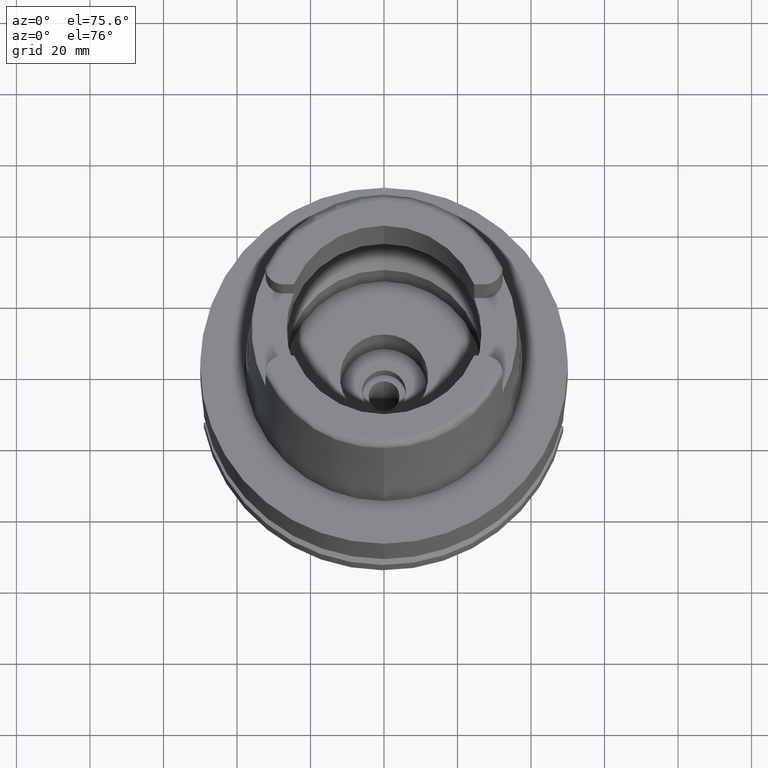
[diagram: clean part render]
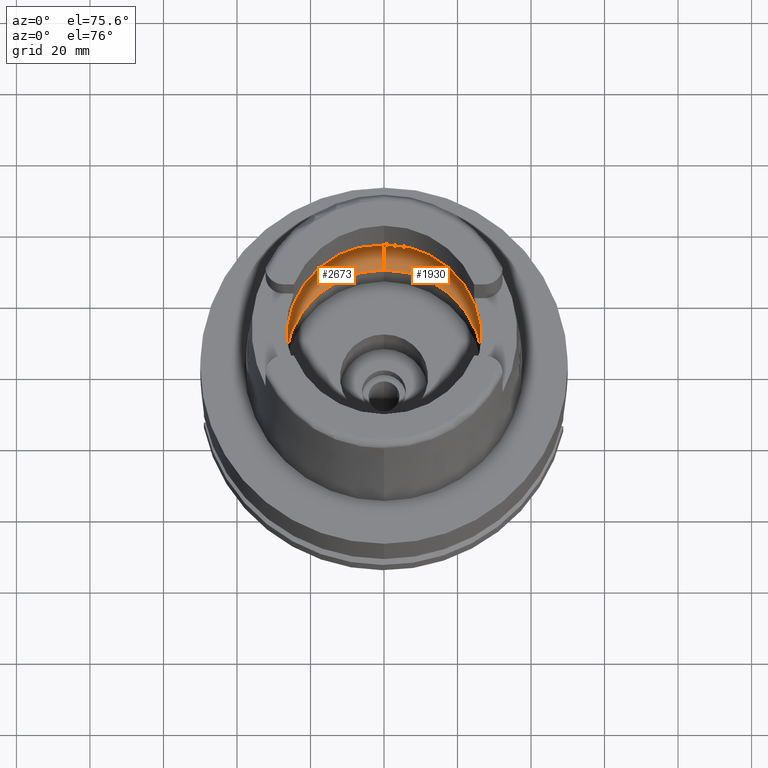
[diagram: same view with one multi-face feature highlighted, each face labeled with its STEP entity id]
A machine part, auxiliary view. The highlighted faces form ONE feature: a constant-radius fillet chain: 2 tangent blend faces with common blend radius 12 mm. The faces share edges in the B-rep.
Their STEP definitions:
[1] entity #1930 (Torus):
#66 = CARTESIAN_POINT ( 'NONE',  ( 0.0000000000000000000, 19.50000000000000000, 9.496624327025999790 ) ) ;
#132 = EDGE_CURVE ( 'NONE', #1932, #5597, #5713, .T. ) ;
#158 = AXIS2_PLACEMENT_3D ( 'NONE', #592, #5718, #1462 ) ;
#164 = EDGE_LOOP ( 'NONE', ( #3228, #3284, #5987, #2266, #5614, #1115, #2477 ) ) ;
#166 = EDGE_CURVE ( 'NONE', #5025, #2175, #3017, .T. ) ;
#282 = VERTEX_POINT ( 'NONE', #3623 ) ;
#429 = CARTESIAN_POINT ( 'NONE',  ( 31.48971910753999026, 0.8697454017787721314, 9.000000000000001776 ) ) ;
#506 = FACE_OUTER_BOUND ( 'NONE', #164, .T. ) ;
#592 = CARTESIAN_POINT ( 'NONE',  ( 0.0000000000000000000, 0.0000000000000000000, 9.496624327025999790 ) ) ;
#898 = DIRECTION ( 'NONE',  ( 0.0000000000000000000, 0.6166666666667049990, -0.7872243785746061429 ) ) ;
#904 = EDGE_CURVE ( 'NONE', #2175, #282, #3303, .T. ) ;
#905 = VERTEX_POINT ( 'NONE', #6078 ) ;
#1115 = ORIENTED_EDGE ( 'NONE', *, *, #132, .F. ) ;
#1253 = DIRECTION ( 'NONE',  ( 0.0000000000000000000, -1.000000000000000000, 0.0000000000000000000 ) ) ;
#1460 = DIRECTION ( 'NONE',  ( 1.000000000000000000, 0.0000000000000000000, 0.0000000000000000000 ) ) ;
#1462 = DIRECTION ( 'NONE',  ( 0.0000000000000000000, 1.000000000000000000, 0.0000000000000000000 ) ) ;
#1484 = CARTESIAN_POINT ( 'NONE',  ( 31.40918884336000616, 2.390158196043999705, 9.496624327025999790 ) ) ;
#1524 = CARTESIAN_POINT ( 'NONE',  ( 0.0000000000000000000, 0.0000000000000000000, 9.496624327025999790 ) ) ;
#1925 = AXIS2_PLACEMENT_3D ( 'NONE', #5249, #2454, #4349 ) ;
#1927 = CARTESIAN_POINT ( 'NONE',  ( 31.40918884336000616, -2.390158196043999705, 9.496624327025999790 ) ) ;
#1930 = ADVANCED_FACE ( 'NONE', ( #506 ), #5101, .F. ) ;
#1932 = VERTEX_POINT ( 'NONE', #1927 ) ;
#1945 = VERTEX_POINT ( 'NONE', #4440 ) ;
#2175 = VERTEX_POINT ( 'NONE', #1484 ) ;
#2266 = ORIENTED_EDGE ( 'NONE', *, *, #3839, .F. ) ;
#2269 = EDGE_CURVE ( 'NONE', #282, #1932, #5899, .T. ) ;
#2454 = DIRECTION ( 'NONE',  ( 0.0000000000000000000, 0.0000000000000000000, 1.000000000000000000 ) ) ;
#2465 = CIRCLE ( 'NONE', #5645, 11.99999999999999822 ) ;
#2477 = ORIENTED_EDGE ( 'NONE', *, *, #2269, .F. ) ;
#2768 = CARTESIAN_POINT ( 'NONE',  ( 31.46287568614665986, 1.684656700008886121, 9.190219625026216477 ) ) ;
#2992 = CARTESIAN_POINT ( 'NONE',  ( 31.48971910753999026, -0.8697454017312684638, 8.999999999999998224 ) ) ;
#3017 = CIRCLE ( 'NONE', #158, 31.50000000000000000 ) ;
#3048 = DIRECTION ( 'NONE',  ( 0.0000000000000000000, 0.0000000000000000000, 1.000000000000000000 ) ) ;
#3160 = DIRECTION ( 'NONE',  ( 0.0000000000000000000, -0.6166666666667049990, -0.7872243785746061429 ) ) ;
#3228 = ORIENTED_EDGE ( 'NONE', *, *, #904, .F. ) ;
#3284 = ORIENTED_EDGE ( 'NONE', *, *, #166, .F. ) ;
#3303 = B_SPLINE_CURVE_WITH_KNOTS ( 'NONE', 3,
 ( #3715, #2768, #429, #3369 ),
 .UNSPECIFIED., .F., .F.,
 ( 4, 4 ),
 ( 0.0000000000000000000, 1.000000000000000000 ),
 .UNSPECIFIED. ) ;
#3369 = CARTESIAN_POINT ( 'NONE',  ( 31.48971910754000447, 0.0000000000000000000, 9.000000000000000000 ) ) ;
#3415 = DIRECTION ( 'NONE',  ( 0.0000000000000000000, 0.0000000000000000000, -1.000000000000000000 ) ) ;
#3525 = CARTESIAN_POINT ( 'NONE',  ( 0.0000000000000000000, 31.50000000000000000, 9.496624327025999790 ) ) ;
#3623 = CARTESIAN_POINT ( 'NONE',  ( 31.48971910754000447, 0.0000000000000000000, 9.000000000000000000 ) ) ;
#3715 = CARTESIAN_POINT ( 'NONE',  ( 31.40918884336000616, 2.390158196043999705, 9.496624327025999790 ) ) ;
#3839 = EDGE_CURVE ( 'NONE', #905, #1945, #3957, .T. ) ;
#3871 = CARTESIAN_POINT ( 'NONE',  ( 31.48971910754000447, 0.0000000000000000000, 9.000000000000000000 ) ) ;
#3957 = CIRCLE ( 'NONE', #6051, 26.89999999999999858 ) ;
#4349 = DIRECTION ( 'NONE',  ( 0.0000000000000000000, 1.000000000000000000, 0.0000000000000000000 ) ) ;
#4406 = CARTESIAN_POINT ( 'NONE',  ( 31.46287568614665986, -1.684656699965325632, 9.190219625007294724 ) ) ;
#4420 = AXIS2_PLACEMENT_3D ( 'NONE', #1524, #3415, #5313 ) ;
#4440 = CARTESIAN_POINT ( 'NONE',  ( 0.0000000000000000000, 26.89999999999999858, 0.04993178413034000257 ) ) ;
#4905 = EDGE_CURVE ( 'NONE', #905, #5597, #5869, .T. ) ;
#5025 = VERTEX_POINT ( 'NONE', #3525 ) ;
#5101 = TOROIDAL_SURFACE ( 'NONE', #1925, 19.50000000000000000, 12.00000000000000000 ) ;
#5249 = CARTESIAN_POINT ( 'NONE',  ( 0.0000000000000000000, 0.0000000000000000000, 9.496624327025999790 ) ) ;
#5307 = CARTESIAN_POINT ( 'NONE',  ( 31.40918884336000616, -2.390158196043999705, 9.496624327025999790 ) ) ;
#5313 = DIRECTION ( 'NONE',  ( 0.9971171061384295209, -0.07587803796965221503, 0.0000000000000000000 ) ) ;
#5369 = AXIS2_PLACEMENT_3D ( 'NONE', #6127, #6063, #3160 ) ;
#5597 = VERTEX_POINT ( 'NONE', #6034 ) ;
#5614 = ORIENTED_EDGE ( 'NONE', *, *, #4905, .T. ) ;
#5645 = AXIS2_PLACEMENT_3D ( 'NONE', #66, #1460, #898 ) ;
#5713 = CIRCLE ( 'NONE', #4420, 31.49999999999998934 ) ;
#5718 = DIRECTION ( 'NONE',  ( 0.0000000000000000000, 0.0000000000000000000, -1.000000000000000000 ) ) ;
#5869 = CIRCLE ( 'NONE', #5369, 11.99999999999999822 ) ;
#5899 = B_SPLINE_CURVE_WITH_KNOTS ( 'NONE', 3,
 ( #3871, #2992, #4406, #5307 ),
 .UNSPECIFIED., .F., .F.,
 ( 4, 4 ),
 ( 0.0000000000000000000, 1.000000000000000000 ),
 .UNSPECIFIED. ) ;
#5950 = CARTESIAN_POINT ( 'NONE',  ( 0.0000000000000000000, 0.0000000000000000000, 0.04993178413033000362 ) ) ;
#5987 = ORIENTED_EDGE ( 'NONE', *, *, #6112, .F. ) ;
#6034 = CARTESIAN_POINT ( 'NONE',  ( 0.0000000000000000000, -31.50000000000000000, 9.496624327025999790 ) ) ;
#6051 = AXIS2_PLACEMENT_3D ( 'NONE', #5950, #3048, #1253 ) ;
#6063 = DIRECTION ( 'NONE',  ( -1.000000000000000000, 0.0000000000000000000, 0.0000000000000000000 ) ) ;
#6078 = CARTESIAN_POINT ( 'NONE',  ( 0.0000000000000000000, -26.89999999999999858, 0.04993178413032000468 ) ) ;
#6112 = EDGE_CURVE ( 'NONE', #1945, #5025, #2465, .T. ) ;
#6127 = CARTESIAN_POINT ( 'NONE',  ( 0.0000000000000000000, -19.50000000000000000, 9.496624327025999790 ) ) ;
[2] entity #2673 (Torus):
#8 = AXIS2_PLACEMENT_3D ( 'NONE', #2917, #5253, #541 ) ;
#33 = EDGE_CURVE ( 'NONE', #580, #3786, #609, .T. ) ;
#66 = CARTESIAN_POINT ( 'NONE',  ( 0.0000000000000000000, 19.50000000000000000, 9.496624327025999790 ) ) ;
#237 = EDGE_LOOP ( 'NONE', ( #1834, #1708, #1658, #3760, #2696, #4445, #2747 ) ) ;
#404 = AXIS2_PLACEMENT_3D ( 'NONE', #5545, #6045, #3178 ) ;
#541 = DIRECTION ( 'NONE',  ( -0.9971171061384295209, 0.07587803796965221503, 0.0000000000000000000 ) ) ;
#580 = VERTEX_POINT ( 'NONE', #710 ) ;
#609 = B_SPLINE_CURVE_WITH_KNOTS ( 'NONE', 3,
 ( #2452, #2510, #989, #3384 ),
 .UNSPECIFIED., .F., .F.,
 ( 4, 4 ),
 ( 0.0000000000000000000, 1.000000000000000000 ),
 .UNSPECIFIED. ) ;
#710 = CARTESIAN_POINT ( 'NONE',  ( -31.48971910754000447, 0.0000000000000000000, 9.000000000000000000 ) ) ;
#793 = AXIS2_PLACEMENT_3D ( 'NONE', #3801, #1845, #3208 ) ;
#898 = DIRECTION ( 'NONE',  ( 0.0000000000000000000, 0.6166666666667049990, -0.7872243785746061429 ) ) ;
#905 = VERTEX_POINT ( 'NONE', #6078 ) ;
#989 = CARTESIAN_POINT ( 'NONE',  ( -31.46287568614665986, 1.684656699916923683, 9.190219624986275093 ) ) ;
#1126 = CARTESIAN_POINT ( 'NONE',  ( -31.46287568614665986, -1.684656700029165899, 9.190219625035021878 ) ) ;
#1460 = DIRECTION ( 'NONE',  ( 1.000000000000000000, 0.0000000000000000000, 0.0000000000000000000 ) ) ;
#1634 = EDGE_CURVE ( 'NONE', #5597, #4508, #5989, .T. ) ;
#1655 = CARTESIAN_POINT ( 'NONE',  ( -31.40918884336000616, -2.390158196043999705, 9.496624327025999790 ) ) ;
#1658 = ORIENTED_EDGE ( 'NONE', *, *, #4105, .F. ) ;
#1708 = ORIENTED_EDGE ( 'NONE', *, *, #4905, .F. ) ;
#1770 = DIRECTION ( 'NONE',  ( 0.0000000000000000000, -1.000000000000000000, 0.0000000000000000000 ) ) ;
#1834 = ORIENTED_EDGE ( 'NONE', *, *, #1634, .F. ) ;
#1845 = DIRECTION ( 'NONE',  ( 0.0000000000000000000, 0.0000000000000000000, 1.000000000000000000 ) ) ;
#1945 = VERTEX_POINT ( 'NONE', #4440 ) ;
#2150 = CARTESIAN_POINT ( 'NONE',  ( -31.48971910754000447, -0.8697454018008697885, 8.999999999999998224 ) ) ;
#2452 = CARTESIAN_POINT ( 'NONE',  ( -31.48971910754000447, 0.0000000000000000000, 9.000000000000000000 ) ) ;
#2465 = CIRCLE ( 'NONE', #5645, 11.99999999999999822 ) ;
#2510 = CARTESIAN_POINT ( 'NONE',  ( -31.48971910754000447, 0.8697454016785111097, 9.000000000000001776 ) ) ;
#2606 = CARTESIAN_POINT ( 'NONE',  ( -31.40918884336000616, -2.390158196043999705, 9.496624327025999790 ) ) ;
#2673 = ADVANCED_FACE ( 'NONE', ( #4142 ), #5758, .F. ) ;
#2696 = ORIENTED_EDGE ( 'NONE', *, *, #5775, .F. ) ;
#2747 = ORIENTED_EDGE ( 'NONE', *, *, #4815, .F. ) ;
#2866 = CIRCLE ( 'NONE', #8, 31.49999999999998934 ) ;
#2917 = CARTESIAN_POINT ( 'NONE',  ( 0.0000000000000000000, 0.0000000000000000000, 9.496624327025999790 ) ) ;
#3023 = CARTESIAN_POINT ( 'NONE',  ( -31.40918884336000616, 2.390158196043999705, 9.496624327025999790 ) ) ;
#3160 = DIRECTION ( 'NONE',  ( 0.0000000000000000000, -0.6166666666667049990, -0.7872243785746061429 ) ) ;
#3178 = DIRECTION ( 'NONE',  ( 0.0000000000000000000, 1.000000000000000000, 0.0000000000000000000 ) ) ;
#3208 = DIRECTION ( 'NONE',  ( 0.0000000000000000000, 1.000000000000000000, 0.0000000000000000000 ) ) ;
#3384 = CARTESIAN_POINT ( 'NONE',  ( -31.40918884336000616, 2.390158196043999705, 9.496624327025999790 ) ) ;
#3470 = CIRCLE ( 'NONE', #793, 26.89999999999999858 ) ;
#3525 = CARTESIAN_POINT ( 'NONE',  ( 0.0000000000000000000, 31.50000000000000000, 9.496624327025999790 ) ) ;
#3547 = B_SPLINE_CURVE_WITH_KNOTS ( 'NONE', 3,
 ( #2606, #1126, #2150, #4012 ),
 .UNSPECIFIED., .F., .F.,
 ( 4, 4 ),
 ( 0.0000000000000000000, 1.000000000000000000 ),
 .UNSPECIFIED. ) ;
#3760 = ORIENTED_EDGE ( 'NONE', *, *, #6112, .T. ) ;
#3786 = VERTEX_POINT ( 'NONE', #3023 ) ;
#3801 = CARTESIAN_POINT ( 'NONE',  ( 0.0000000000000000000, 0.0000000000000000000, 0.04993178413032000468 ) ) ;
#4012 = CARTESIAN_POINT ( 'NONE',  ( -31.48971910754000447, 0.0000000000000000000, 9.000000000000000000 ) ) ;
#4105 = EDGE_CURVE ( 'NONE', #1945, #905, #3470, .T. ) ;
#4142 = FACE_OUTER_BOUND ( 'NONE', #237, .T. ) ;
#4440 = CARTESIAN_POINT ( 'NONE',  ( 0.0000000000000000000, 26.89999999999999858, 0.04993178413034000257 ) ) ;
#4445 = ORIENTED_EDGE ( 'NONE', *, *, #33, .F. ) ;
#4508 = VERTEX_POINT ( 'NONE', #1655 ) ;
#4573 = DIRECTION ( 'NONE',  ( 0.0000000000000000000, 0.0000000000000000000, -1.000000000000000000 ) ) ;
#4796 = AXIS2_PLACEMENT_3D ( 'NONE', #5031, #4573, #1770 ) ;
#4815 = EDGE_CURVE ( 'NONE', #4508, #580, #3547, .T. ) ;
#4905 = EDGE_CURVE ( 'NONE', #905, #5597, #5869, .T. ) ;
#5025 = VERTEX_POINT ( 'NONE', #3525 ) ;
#5031 = CARTESIAN_POINT ( 'NONE',  ( 0.0000000000000000000, 0.0000000000000000000, 9.496624327025999790 ) ) ;
#5253 = DIRECTION ( 'NONE',  ( 0.0000000000000000000, 0.0000000000000000000, -1.000000000000000000 ) ) ;
#5369 = AXIS2_PLACEMENT_3D ( 'NONE', #6127, #6063, #3160 ) ;
#5545 = CARTESIAN_POINT ( 'NONE',  ( 0.0000000000000000000, 0.0000000000000000000, 9.496624327025999790 ) ) ;
#5597 = VERTEX_POINT ( 'NONE', #6034 ) ;
#5645 = AXIS2_PLACEMENT_3D ( 'NONE', #66, #1460, #898 ) ;
#5758 = TOROIDAL_SURFACE ( 'NONE', #404, 19.50000000000000000, 12.00000000000000000 ) ;
#5775 = EDGE_CURVE ( 'NONE', #3786, #5025, #2866, .T. ) ;
#5869 = CIRCLE ( 'NONE', #5369, 11.99999999999999822 ) ;
#5989 = CIRCLE ( 'NONE', #4796, 31.50000000000000000 ) ;
#6034 = CARTESIAN_POINT ( 'NONE',  ( 0.0000000000000000000, -31.50000000000000000, 9.496624327025999790 ) ) ;
#6045 = DIRECTION ( 'NONE',  ( 0.0000000000000000000, 0.0000000000000000000, 1.000000000000000000 ) ) ;
#6063 = DIRECTION ( 'NONE',  ( -1.000000000000000000, 0.0000000000000000000, 0.0000000000000000000 ) ) ;
#6078 = CARTESIAN_POINT ( 'NONE',  ( 0.0000000000000000000, -26.89999999999999858, 0.04993178413032000468 ) ) ;
#6112 = EDGE_CURVE ( 'NONE', #1945, #5025, #2465, .T. ) ;
#6127 = CARTESIAN_POINT ( 'NONE',  ( 0.0000000000000000000, -19.50000000000000000, 9.496624327025999790 ) ) ;